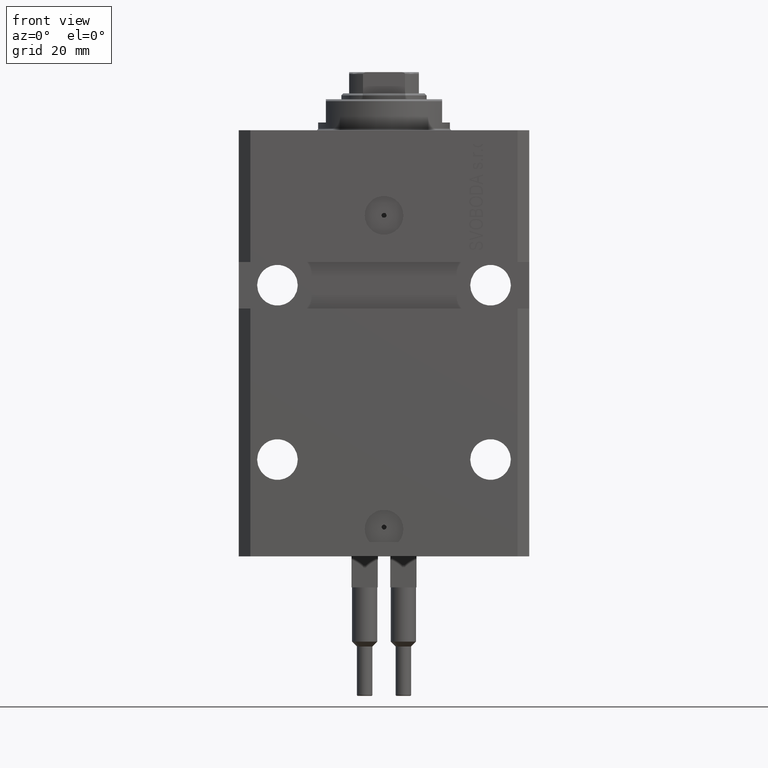
[diagram: clean part render]
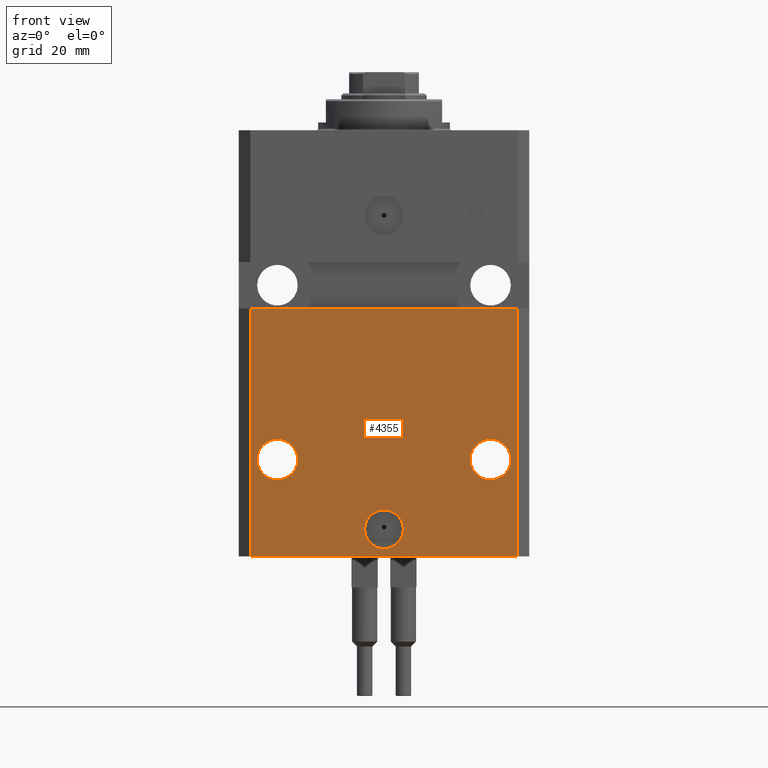
[diagram: same view with one face highlighted and labeled with its STEP entity id]
A machine part, front view. The second image highlights one B-rep face of the part: STEP entity #4355.
In plain terms, the highlighted planar face has unit normal (0, -1, 0).
Its self-contained STEP definition (entity closure, byte-faithful):
#442 = DIRECTION ( 'NONE',  ( 0.000000000000000000, -1.000000000000000000, 0.000000000000000000 ) ) ;
#567 = CARTESIAN_POINT ( 'NONE',  ( 27.50000000000001421, -27.49999999999999289, -84.99999999999998579 ) ) ;
#702 = DIRECTION ( 'NONE',  ( 1.176083712526788232E-16, -1.000000000000000000, 0.000000000000000000 ) ) ;
#1283 = DIRECTION ( 'NONE',  ( 1.000000000000000000, 0.000000000000000000, 0.000000000000000000 ) ) ;
#1445 = AXIS2_PLACEMENT_3D ( 'NONE', #42590, #20146, #27791 ) ;
#3080 = DIRECTION ( 'NONE',  ( 0.000000000000000000, 0.000000000000000000, 1.000000000000000000 ) ) ;
#3114 = EDGE_CURVE ( 'NONE', #14739, #33383, #31227, .T. ) ;
#3381 = CARTESIAN_POINT ( 'NONE',  ( 32.75000000000000711, -27.49999999999999289, -84.99999999999998579 ) ) ;
#3806 = LINE ( 'NONE', #33831, #13194 ) ;
#4078 = CIRCLE ( 'NONE', #28451, 5.249999999999994671 ) ;
#4355 = ADVANCED_FACE ( 'NONE', ( #15644, #30684, #12215, #34165 ), #27466, .T. ) ;
#5632 = AXIS2_PLACEMENT_3D ( 'NONE', #31768, #46828, #39415 ) ;
#6066 = ORIENTED_EDGE ( 'NONE', *, *, #3114, .T. ) ;
#6488 = CARTESIAN_POINT ( 'NONE',  ( 0.000000000000000000, -27.49999999999999645, -103.0000000000000000 ) ) ;
#7116 = AXIS2_PLACEMENT_3D ( 'NONE', #8053, #442, #45731 ) ;
#8053 = CARTESIAN_POINT ( 'NONE',  ( -34.49999999999998579, -27.49999999999999645, -110.0000000000000000 ) ) ;
#8252 = CARTESIAN_POINT ( 'NONE',  ( -34.49999999999998579, -27.50000000000000000, -46.00000000000000000 ) ) ;
#8369 = ORIENTED_EDGE ( 'NONE', *, *, #22613, .F. ) ;
#10064 = CARTESIAN_POINT ( 'NONE',  ( 5.000000000000006217, -27.49999999999999645, -103.0000000000000000 ) ) ;
#10403 = DIRECTION ( 'NONE',  ( 1.176083712526788232E-16, -1.000000000000000000, 0.000000000000000000 ) ) ;
#10694 = CIRCLE ( 'NONE', #20132, 5.249999999999994671 ) ;
#11739 = VERTEX_POINT ( 'NONE', #39309 ) ;
#12157 = EDGE_LOOP ( 'NONE', ( #43790, #39743 ) ) ;
#12215 = FACE_BOUND ( 'NONE', #12157, .T. ) ;
#13194 = VECTOR ( 'NONE', #15342, 1000.000000000000000 ) ;
#13242 = EDGE_CURVE ( 'NONE', #39706, #16954, #47970, .T. ) ;
#13620 = EDGE_CURVE ( 'NONE', #11739, #18315, #17893, .T. ) ;
#13930 = EDGE_CURVE ( 'NONE', #35185, #40348, #3806, .T. ) ;
#14313 = VECTOR ( 'NONE', #3080, 1000.000000000000000 ) ;
#14625 = CARTESIAN_POINT ( 'NONE',  ( 27.50000000000001421, -27.49999999999999289, -84.99999999999998579 ) ) ;
#14739 = VERTEX_POINT ( 'NONE', #25199 ) ;
#15342 = DIRECTION ( 'NONE',  ( 1.000000000000000000, 9.251858538542972814E-17, -9.251858538542972814E-17 ) ) ;
#15644 = FACE_BOUND ( 'NONE', #34196, .T. ) ;
#15985 = ORIENTED_EDGE ( 'NONE', *, *, #13930, .F. ) ;
#16170 = LINE ( 'NONE', #41355, #20418 ) ;
#16759 = ORIENTED_EDGE ( 'NONE', *, *, #22954, .F. ) ;
#16954 = VERTEX_POINT ( 'NONE', #3381 ) ;
#17787 = CARTESIAN_POINT ( 'NONE',  ( 34.49999999999999289, -27.49999999999999645, -110.0000000000000000 ) ) ;
#17893 = CIRCLE ( 'NONE', #1445, 5.249999999999994671 ) ;
#18315 = VERTEX_POINT ( 'NONE', #26135 ) ;
#18687 = CARTESIAN_POINT ( 'NONE',  ( -5.000000000000006217, -27.49999999999999645, -103.0000000000000000 ) ) ;
#19394 = DIRECTION ( 'NONE',  ( 1.000000000000000000, 0.000000000000000000, 0.000000000000000000 ) ) ;
#19607 = DIRECTION ( 'NONE',  ( 0.000000000000000000, 0.000000000000000000, 1.000000000000000000 ) ) ;
#19966 = AXIS2_PLACEMENT_3D ( 'NONE', #567, #45621, #1283 ) ;
#20132 = AXIS2_PLACEMENT_3D ( 'NONE', #34195, #702, #27017 ) ;
#20146 = DIRECTION ( 'NONE',  ( 1.176083712526788232E-16, -1.000000000000000000, 0.000000000000000000 ) ) ;
#20188 = ORIENTED_EDGE ( 'NONE', *, *, #40811, .T. ) ;
#20418 = VECTOR ( 'NONE', #19607, 1000.000000000000000 ) ;
#20526 = CIRCLE ( 'NONE', #5632, 5.000000000000006217 ) ;
#21485 = DIRECTION ( 'NONE',  ( 1.000000000000000000, 0.000000000000000000, 0.000000000000000000 ) ) ;
#21696 = CARTESIAN_POINT ( 'NONE',  ( 34.49999999999999289, -27.49999999999999289, -46.00000000000000711 ) ) ;
#21782 = EDGE_CURVE ( 'NONE', #16954, #39706, #4078, .T. ) ;
#22613 = EDGE_CURVE ( 'NONE', #14739, #35185, #25467, .T. ) ;
#22954 = EDGE_CURVE ( 'NONE', #25901, #45999, #41101, .T. ) ;
#25199 = CARTESIAN_POINT ( 'NONE',  ( -34.49999999999998579, -27.49999999999999645, -110.0000000000000000 ) ) ;
#25467 = LINE ( 'NONE', #44696, #14313 ) ;
#25901 = VERTEX_POINT ( 'NONE', #10064 ) ;
#25949 = DIRECTION ( 'NONE',  ( 1.000000000000000000, 0.000000000000000000, 0.000000000000000000 ) ) ;
#26135 = CARTESIAN_POINT ( 'NONE',  ( -32.75000000000000711, -27.50000000000000000, -84.99999999999998579 ) ) ;
#27017 = DIRECTION ( 'NONE',  ( -1.000000000000000000, 0.000000000000000000, 0.000000000000000000 ) ) ;
#27466 = PLANE ( 'NONE',  #7116 ) ;
#27791 = DIRECTION ( 'NONE',  ( -1.000000000000000000, 0.000000000000000000, 0.000000000000000000 ) ) ;
#28451 = AXIS2_PLACEMENT_3D ( 'NONE', #14625, #44702, #25949 ) ;
#29247 = ORIENTED_EDGE ( 'NONE', *, *, #43457, .F. ) ;
#30684 = FACE_BOUND ( 'NONE', #35497, .T. ) ;
#31227 = LINE ( 'NONE', #34932, #46418 ) ;
#31768 = CARTESIAN_POINT ( 'NONE',  ( 0.000000000000000000, -27.49999999999999645, -103.0000000000000000 ) ) ;
#33383 = VERTEX_POINT ( 'NONE', #17787 ) ;
#33831 = CARTESIAN_POINT ( 'NONE',  ( -37.50000000000000000, -27.50000000000000000, -46.00000000000000000 ) ) ;
#34165 = FACE_OUTER_BOUND ( 'NONE', #36915, .T. ) ;
#34196 = EDGE_LOOP ( 'NONE', ( #16759, #29247 ) ) ;
#34195 = CARTESIAN_POINT ( 'NONE',  ( -27.50000000000001421, -27.50000000000000000, -84.99999999999998579 ) ) ;
#34932 = CARTESIAN_POINT ( 'NONE',  ( -34.49999999999998579, -27.49999999999999645, -110.0000000000000000 ) ) ;
#35185 = VERTEX_POINT ( 'NONE', #8252 ) ;
#35497 = EDGE_LOOP ( 'NONE', ( #39656, #45247 ) ) ;
#35780 = EDGE_CURVE ( 'NONE', #18315, #11739, #10694, .T. ) ;
#36837 = CARTESIAN_POINT ( 'NONE',  ( 22.25000000000002132, -27.49999999999999289, -84.99999999999998579 ) ) ;
#36915 = EDGE_LOOP ( 'NONE', ( #15985, #8369, #6066, #20188 ) ) ;
#39309 = CARTESIAN_POINT ( 'NONE',  ( -22.25000000000002132, -27.50000000000000000, -84.99999999999998579 ) ) ;
#39415 = DIRECTION ( 'NONE',  ( 1.000000000000000000, 0.000000000000000000, 0.000000000000000000 ) ) ;
#39521 = AXIS2_PLACEMENT_3D ( 'NONE', #6488, #10403, #21485 ) ;
#39656 = ORIENTED_EDGE ( 'NONE', *, *, #21782, .F. ) ;
#39706 = VERTEX_POINT ( 'NONE', #36837 ) ;
#39743 = ORIENTED_EDGE ( 'NONE', *, *, #35780, .F. ) ;
#40348 = VERTEX_POINT ( 'NONE', #21696 ) ;
#40811 = EDGE_CURVE ( 'NONE', #33383, #40348, #16170, .T. ) ;
#41101 = CIRCLE ( 'NONE', #39521, 5.000000000000006217 ) ;
#41355 = CARTESIAN_POINT ( 'NONE',  ( 34.49999999999999289, -27.49999999999999645, -110.0000000000000000 ) ) ;
#42590 = CARTESIAN_POINT ( 'NONE',  ( -27.50000000000001421, -27.50000000000000000, -84.99999999999998579 ) ) ;
#43457 = EDGE_CURVE ( 'NONE', #45999, #25901, #20526, .T. ) ;
#43790 = ORIENTED_EDGE ( 'NONE', *, *, #13620, .F. ) ;
#44696 = CARTESIAN_POINT ( 'NONE',  ( -34.49999999999998579, -27.49999999999999645, -110.0000000000000000 ) ) ;
#44702 = DIRECTION ( 'NONE',  ( 1.176083712526788232E-16, -1.000000000000000000, 0.000000000000000000 ) ) ;
#45247 = ORIENTED_EDGE ( 'NONE', *, *, #13242, .F. ) ;
#45621 = DIRECTION ( 'NONE',  ( 1.176083712526788232E-16, -1.000000000000000000, 0.000000000000000000 ) ) ;
#45731 = DIRECTION ( 'NONE',  ( 0.000000000000000000, -0.000000000000000000, -1.000000000000000000 ) ) ;
#45999 = VERTEX_POINT ( 'NONE', #18687 ) ;
#46418 = VECTOR ( 'NONE', #19394, 1000.000000000000000 ) ;
#46828 = DIRECTION ( 'NONE',  ( 1.176083712526788232E-16, -1.000000000000000000, 0.000000000000000000 ) ) ;
#47970 = CIRCLE ( 'NONE', #19966, 5.249999999999994671 ) ;